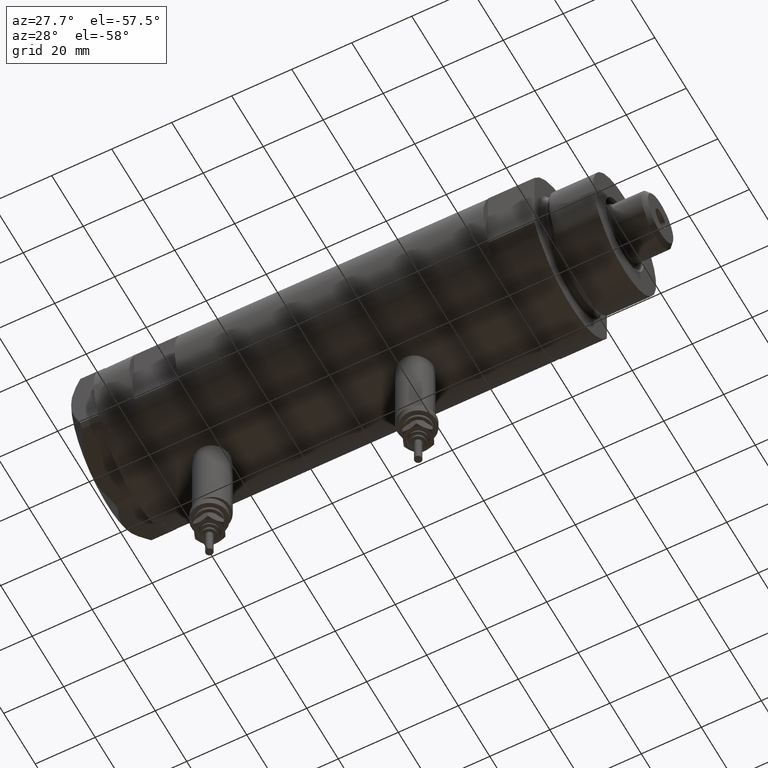
[diagram: clean part render]
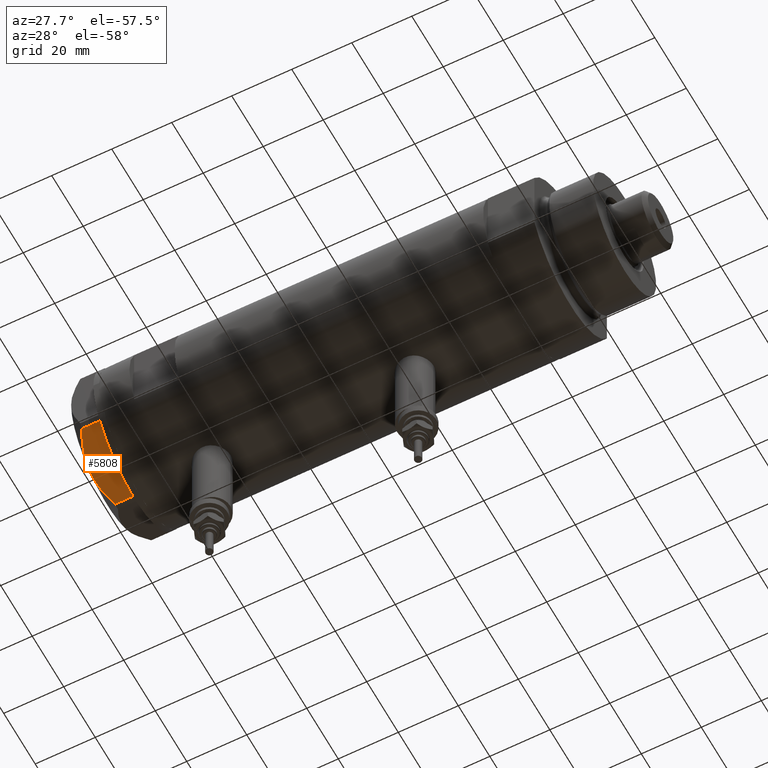
[diagram: same view with one face highlighted and labeled with its STEP entity id]
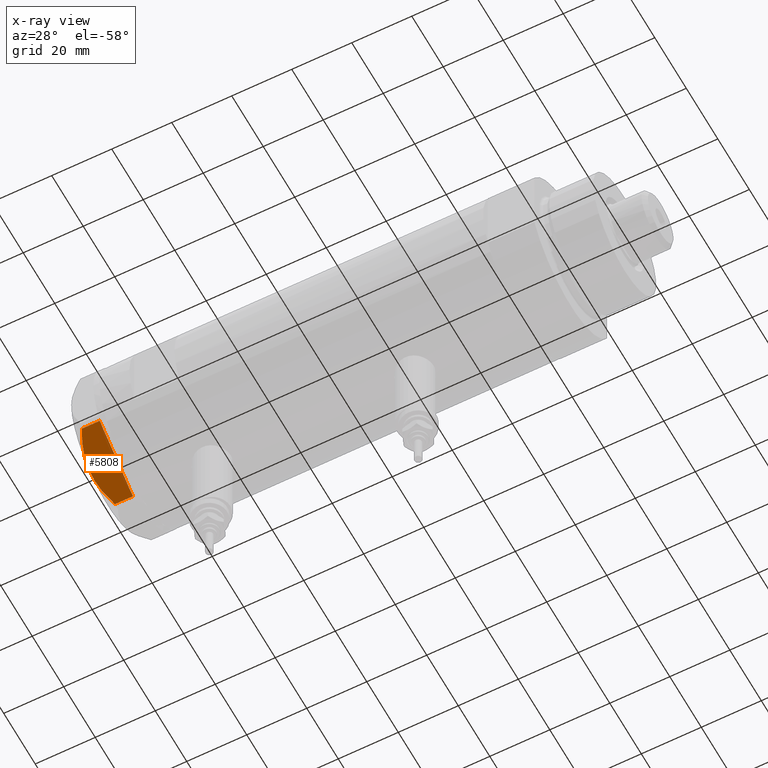
[diagram: x-ray of the same camera — body ghosted, the highlighted face saturated]
A machine part, auxiliary view. The second image highlights one B-rep face of the part: STEP entity #5808.
The next image is the same camera in x-ray: the body ghosted, the highlighted face saturated — about 0% of this face is hidden behind the body in this view.
In plain terms, the highlighted planar face has unit normal (0, 0.5, 0.866).
Its self-contained STEP definition (entity closure, byte-faithful):
#24 = CARTESIAN_POINT ( 'NONE',  ( -17.77001848220191604, 16.29858742851882170, 7.892128867758443356 ) ) ;
#27 = DIRECTION ( 'NONE',  ( -0.8660254037844380415, -0.5000000000000008882, 0.000000000000000000 ) ) ;
#63 = CARTESIAN_POINT ( 'NONE',  ( 0.000000000000000000, 26.55811238272274366, 0.000000000000000000 ) ) ;
#285 = B_SPLINE_CURVE_WITH_KNOTS ( 'NONE', 3,
 ( #2898, #948, #819, #2764, #887, #2828, #473, #4275, #6257, #4729 ),
 .UNSPECIFIED., .F., .F.,
 ( 4, 2, 2, 2, 4 ),
 ( 0.001228959670438516723, 0.007497079744270820564, 0.01063113978118697227, 0.01219816979964504812, 0.01376519981810312397 ),
 .UNSPECIFIED. ) ;
#415 = CARTESIAN_POINT ( 'NONE',  ( -0.9699484522385775076, 25.99811238272273783, 9.000000000000000000 ) ) ;
#459 = VERTEX_POINT ( 'NONE', #4402 ) ;
#473 = CARTESIAN_POINT ( 'NONE',  ( -9.656518383329848021, 20.98291889467267168, 8.907842277728436287 ) ) ;
#477 = EDGE_CURVE ( 'NONE', #1246, #3184, #3324, .T. ) ;
#501 = CARTESIAN_POINT ( 'NONE',  ( 0.000000000000000000, 26.55811238272274366, 0.000000000000000000 ) ) ;
#601 = ORIENTED_EDGE ( 'NONE', *, *, #3653, .T. ) ;
#819 = CARTESIAN_POINT ( 'NONE',  ( -4.320186229909880105, 24.06385169993494699, 7.629374868826106493 ) ) ;
#887 = CARTESIAN_POINT ( 'NONE',  ( -7.836767740116576952, 22.03355241838985279, 8.637313967156947214 ) ) ;
#943 = EDGE_CURVE ( 'NONE', #459, #989, #4796, .T. ) ;
#948 = CARTESIAN_POINT ( 'NONE',  ( -2.626494320835632390, 25.04170517956325881, 6.877782426143454586 ) ) ;
#949 = PLANE ( 'NONE',  #1463 ) ;
#982 = CARTESIAN_POINT ( 'NONE',  ( -20.35958612119326361, 14.80349985506240884, 6.844201024438374859 ) ) ;
#989 = VERTEX_POINT ( 'NONE', #4931 ) ;
#1002 = CARTESIAN_POINT ( 'NONE',  ( -22.03005154776144181, 13.83905619136131371, 5.983800287807625295 ) ) ;
#1050 = VECTOR ( 'NONE', #6246, 1000.000000000000000 ) ;
#1209 = CARTESIAN_POINT ( 'NONE',  ( -22.03005154776142760, 13.83905619136131904, 0.000000000000000000 ) ) ;
#1246 = VERTEX_POINT ( 'NONE', #3759 ) ;
#1326 = EDGE_CURVE ( 'NONE', #459, #1246, #285, .T. ) ;
#1455 = CARTESIAN_POINT ( 'NONE',  ( -18.64279229058394804, 15.79469123530778951, 7.570552255229721084 ) ) ;
#1463 = AXIS2_PLACEMENT_3D ( 'NONE', #2899, #4863, #5372 ) ;
#1723 = ORIENTED_EDGE ( 'NONE', *, *, #5552, .T. ) ;
#1899 = VECTOR ( 'NONE', #3420, 1000.000000000000000 ) ;
#1929 = CARTESIAN_POINT ( 'NONE',  ( -13.32175508098984729, 18.86679350063496585, 9.000000000000088818 ) ) ;
#2065 = EDGE_LOOP ( 'NONE', ( #2676, #1723, #3938, #5698, #2652, #601, #4211 ) ) ;
#2345 = LINE ( 'NONE', #4299, #1050 ) ;
#2652 = ORIENTED_EDGE ( 'NONE', *, *, #943, .T. ) ;
#2676 = ORIENTED_EDGE ( 'NONE', *, *, #5748, .T. ) ;
#2764 = CARTESIAN_POINT ( 'NONE',  ( -6.946777556903624529, 22.54738849024398206, 8.426899937603780089 ) ) ;
#2828 = CARTESIAN_POINT ( 'NONE',  ( -9.197898616902920210, 21.24770314027494678, 8.852712638955802404 ) ) ;
#2898 = CARTESIAN_POINT ( 'NONE',  ( -0.9699484522384356211, 25.99811238272282310, 5.983800287807548912 ) ) ;
#2899 = CARTESIAN_POINT ( 'NONE',  ( 0.000000000000000000, 26.55811238272274366, 9.000000000000000000 ) ) ;
#2952 = CARTESIAN_POINT ( 'NONE',  ( -21.20080365460318461, 14.31782268570115768, 6.431317509509388408 ) ) ;
#3184 = VERTEX_POINT ( 'NONE', #1002 ) ;
#3312 = FACE_OUTER_BOUND ( 'NONE', #2065, .T. ) ;
#3324 = B_SPLINE_CURVE_WITH_KNOTS ( 'NONE', 3,
 ( #5872, #1929, #3883, #5839, #24, #1455, #3409, #982, #2952, #5368 ),
 .UNSPECIFIED., .F., .F.,
 ( 4, 2, 2, 2, 4 ),
 ( 0.01376519981810312397, 0.01998941321701588544, 0.02154546656674408145, 0.02310151991647227399, 0.02621362661592866600 ),
 .UNSPECIFIED. ) ;
#3409 = CARTESIAN_POINT ( 'NONE',  ( -19.07486218896994856, 15.54523556316589961, 7.397272853991406549 ) ) ;
#3420 = DIRECTION ( 'NONE',  ( 0.000000000000000000, 0.000000000000000000, -1.000000000000000000 ) ) ;
#3559 = LINE ( 'NONE', #5519, #6027 ) ;
#3575 = CARTESIAN_POINT ( 'NONE',  ( -0.9999999999999089617, 25.98076211353316367, 0.000000000000000000 ) ) ;
#3592 = DIRECTION ( 'NONE',  ( -0.8660254037844380415, -0.5000000000000008882, 0.000000000000000000 ) ) ;
#3653 = EDGE_CURVE ( 'NONE', #989, #4549, #3559, .T. ) ;
#3704 = CARTESIAN_POINT ( 'NONE',  ( -22.00000000000008171, 13.85640646055089498, 0.000000000000000000 ) ) ;
#3759 = CARTESIAN_POINT ( 'NONE',  ( -11.50000000000004441, 19.91858428704211548, 9.000000000000000000 ) ) ;
#3824 = LINE ( 'NONE', #501, #5248 ) ;
#3883 = CARTESIAN_POINT ( 'NONE',  ( -15.11535457301033247, 17.83125835109856183, 8.707651728477001640 ) ) ;
#3938 = ORIENTED_EDGE ( 'NONE', *, *, #477, .F. ) ;
#4211 = ORIENTED_EDGE ( 'NONE', *, *, #5898, .T. ) ;
#4275 = CARTESIAN_POINT ( 'NONE',  ( -10.58093321976963175, 20.44920774001128549, 8.981686407609499767 ) ) ;
#4299 = CARTESIAN_POINT ( 'NONE',  ( -22.03005154776143115, 13.83905619136131726, 9.000000000000000000 ) ) ;
#4402 = CARTESIAN_POINT ( 'NONE',  ( -0.9699484522384356211, 25.99811238272282310, 5.983800287807548912 ) ) ;
#4523 = VECTOR ( 'NONE', #5428, 1000.000000000000227 ) ;
#4525 = VERTEX_POINT ( 'NONE', #1209 ) ;
#4549 = VERTEX_POINT ( 'NONE', #3575 ) ;
#4713 = VERTEX_POINT ( 'NONE', #3704 ) ;
#4729 = CARTESIAN_POINT ( 'NONE',  ( -11.50000000000004441, 19.91858428704211548, 9.000000000000000000 ) ) ;
#4796 = LINE ( 'NONE', #415, #1899 ) ;
#4863 = DIRECTION ( 'NONE',  ( 0.5000000000000009992, -0.8660254037844381525, 0.000000000000000000 ) ) ;
#4931 = CARTESIAN_POINT ( 'NONE',  ( -0.9699484522385772856, 25.99811238272273783, 0.000000000000000000 ) ) ;
#5248 = VECTOR ( 'NONE', #27, 1000.000000000000227 ) ;
#5368 = CARTESIAN_POINT ( 'NONE',  ( -22.03005154776144181, 13.83905619136131371, 5.983800287807625295 ) ) ;
#5372 = DIRECTION ( 'NONE',  ( 0.8660254037844380415, 0.5000000000000008882, 0.000000000000000000 ) ) ;
#5428 = DIRECTION ( 'NONE',  ( -0.8660254037844380415, -0.5000000000000008882, 0.000000000000000000 ) ) ;
#5489 = LINE ( 'NONE', #63, #4523 ) ;
#5519 = CARTESIAN_POINT ( 'NONE',  ( 0.000000000000000000, 26.55811238272274366, 0.000000000000000000 ) ) ;
#5552 = EDGE_CURVE ( 'NONE', #4525, #3184, #2345, .T. ) ;
#5698 = ORIENTED_EDGE ( 'NONE', *, *, #1326, .F. ) ;
#5748 = EDGE_CURVE ( 'NONE', #4713, #4525, #3824, .T. ) ;
#5808 = ADVANCED_FACE ( 'NONE', ( #3312 ), #949, .F. ) ;
#5839 = CARTESIAN_POINT ( 'NONE',  ( -17.32831362639718975, 16.55360584592005679, 8.040681765829335248 ) ) ;
#5872 = CARTESIAN_POINT ( 'NONE',  ( -11.50000000000004441, 19.91858428704211548, 9.000000000000000000 ) ) ;
#5898 = EDGE_CURVE ( 'NONE', #4549, #4713, #5489, .T. ) ;
#6027 = VECTOR ( 'NONE', #3592, 1000.000000000000227 ) ;
#6246 = DIRECTION ( 'NONE',  ( 0.000000000000000000, 0.000000000000000000, 1.000000000000000000 ) ) ;
#6257 = CARTESIAN_POINT ( 'NONE',  ( -11.04134848610939557, 20.18338686205100885, 9.000000000000094147 ) ) ;